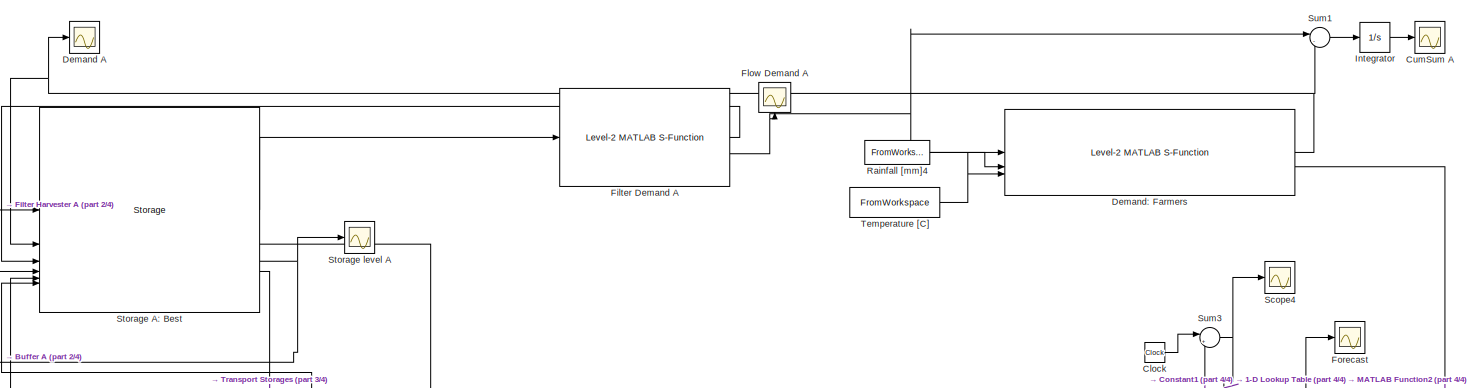
[diagram: root canvas - part 1/4, top center region]
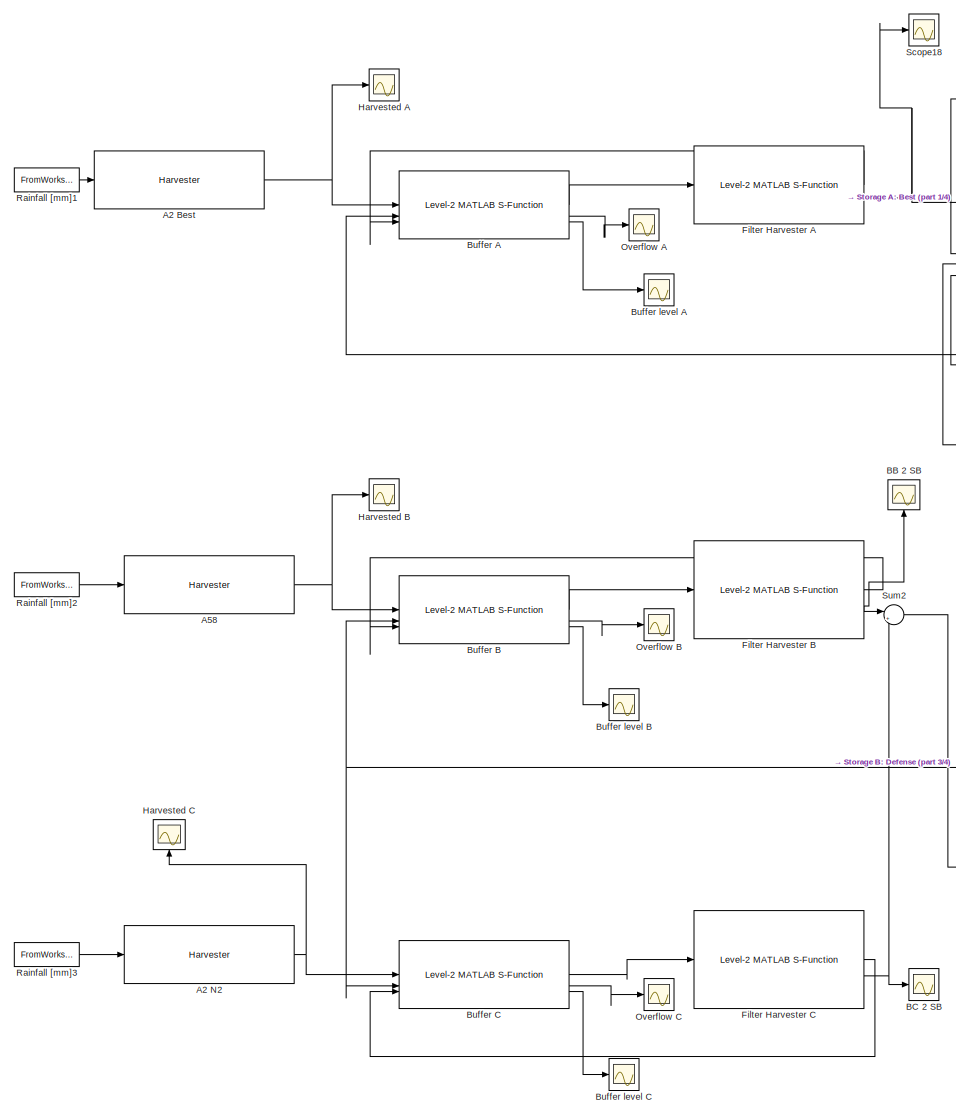
[diagram: root canvas - part 2/4, left side, full height]
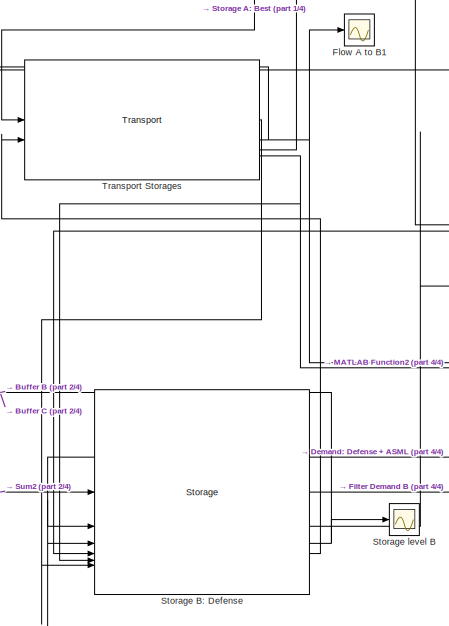
[diagram: root canvas - part 3/4, central region]
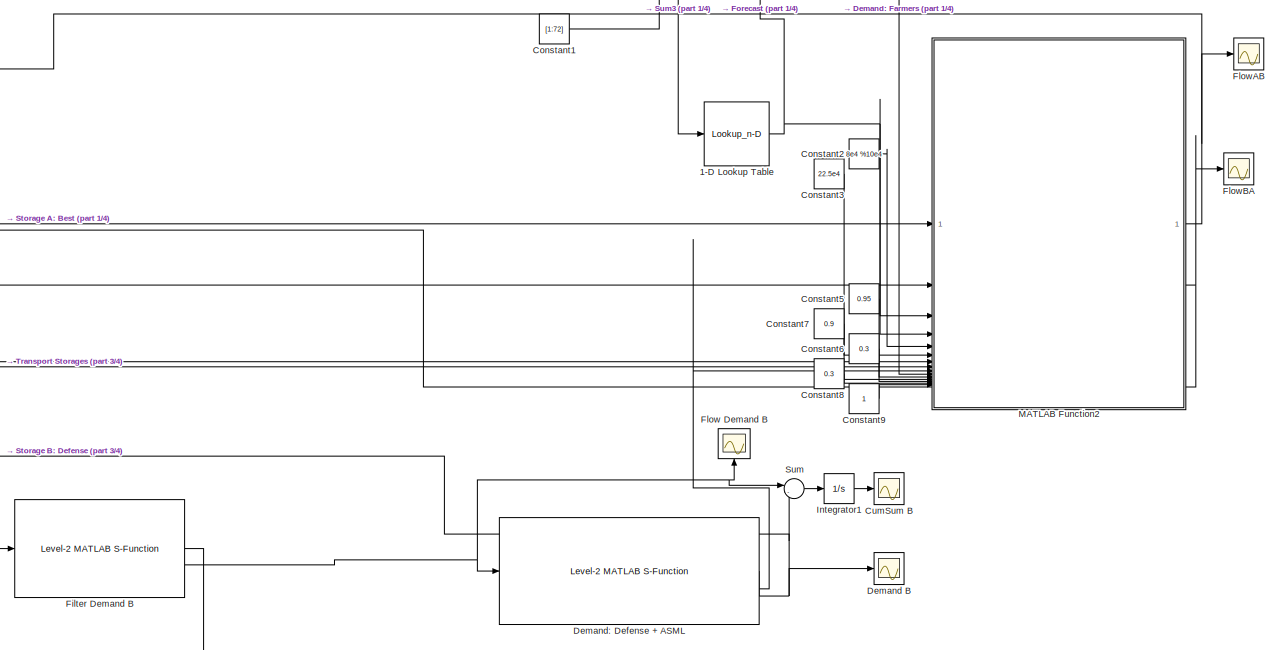
[diagram: root canvas - part 4/4, middle right region]
MODEL slx_6c951e8896bb
KIND model
CONFIG AbsTol = auto
CONFIG EnableMultiTasking = off
CONFIG FixedStep = 0.2
CONFIG MaxStep = auto
CONFIG MinStep = auto
CONFIG RelTol = 1e-3
CONFIG SampleTimeConstraint = Unconstrained
CONFIG SolverName = ode1
CONFIG StartTime = 0.0
CONFIG StopTime = 365*24
BLOCK [Lookup_n-D] 1-D Lookup Table
  BreakpointsForDimension1 = [0:8783]
  InputPortMap = u0
  InternalRulePriority = Speed
  NumberOfTableDimensions = 1
  RndMeth = Simplest
  Table = rain_data(:,2)
BLOCK [Reference] A2 Best  REF=Harvester_lib/Harvester
  SourceBlock = Harvester_lib/Harvester
BLOCK [Reference] A2 N2  REF=Harvester_lib/Harvester
  SourceBlock = Harvester_lib/Harvester
BLOCK [Reference] A58  REF=Harvester_lib/Harvester
  SourceBlock = Harvester_lib/Harvester
BLOCK [Scope] BB 2 SB
  Floating = off
  NameLocation = right
  NumInputPorts = 1
  ScopeSpecificationString = Simulink.scopes.TimeScopeBlockCfg('CurrentConfiguration', extmgr.ConfigurationSet(extmgr.Configuration('Core','General UI',true),extmgr.Configuration('Core','Source UI',true),extmgr.Configuration('Sources','WiredSimulink',true,'DataLoggingVariableName','ScopeData1'),extmgr.Configuration('Visuals','Time Domain',true,'SerializedDisplays',{struct('MinYLimReal','-7.82689','MaxYLimReal','70.44205','YLa...<+1511ch>
BLOCK [Scope] BC 2 SB
  Floating = off
  NumInputPorts = 1
  ScopeSpecificationString = Simulink.scopes.TimeScopeBlockCfg('CurrentConfiguration', extmgr.ConfigurationSet(extmgr.Configuration('Core','General UI',true),extmgr.Configuration('Core','Source UI',true),extmgr.Configuration('Sources','WiredSimulink',true,'DataLoggingVariableName','ScopeData2'),extmgr.Configuration('Visuals','Time Domain',true,'SerializedDisplays',{struct('MinYLimReal','-9.64414','MaxYLimReal','86.79727','YLa...<+1511ch>
BLOCK [Reference] Buffer A  REF=buffer_lib/Level-2 MATLAB
S-Function
  SourceBlock = buffer_lib/Level-2 MATLAB\nS-Function
BLOCK [Reference] Buffer B  REF=buffer_lib/Level-2 MATLAB
S-Function
  SourceBlock = buffer_lib/Level-2 MATLAB\nS-Function
BLOCK [Reference] Buffer C  REF=buffer_lib/Level-2 MATLAB
S-Function
  SourceBlock = buffer_lib/Level-2 MATLAB\nS-Function
BLOCK [Scope] Buffer level A
  Floating = off
  NumInputPorts = 1
  ScopeSpecificationString = Simulink.scopes.TimeScopeBlockCfg('CurrentConfiguration', extmgr.ConfigurationSet(extmgr.Configuration('Core','General UI',true),extmgr.Configuration('Core','Source UI',true),extmgr.Configuration('Sources','WiredSimulink',true,'DataLoggingVariableName','ScopeData2'),extmgr.Configuration('Visuals','Time Domain',true,'SerializedDisplays',{struct('MinYLimReal','-0.08002','MaxYLimReal','0.72022','YLab...<+1458ch>
BLOCK [Scope] Buffer level B
  Floating = off
  NumInputPorts = 1
  ScopeSpecificationString = Simulink.scopes.TimeScopeBlockCfg('CurrentConfiguration', extmgr.ConfigurationSet(extmgr.Configuration('Core','General UI',true),extmgr.Configuration('Core','Source UI',true),extmgr.Configuration('Sources','WiredSimulink',true,'DataLoggingVariableName','ScopeData8'),extmgr.Configuration('Visuals','Time Domain',true,'SerializedDisplays',{struct('MinYLimReal','-0.08066','MaxYLimReal','0.72594','YLab...<+1491ch>
BLOCK [Scope] Buffer level C
  Floating = off
  NumInputPorts = 1
  ScopeSpecificationString = Simulink.scopes.TimeScopeBlockCfg('CurrentConfiguration', extmgr.ConfigurationSet(extmgr.Configuration('Core','General UI',true),extmgr.Configuration('Core','Source UI',true),extmgr.Configuration('Sources','WiredSimulink',true,'DataLoggingVariableName','ScopeData2'),extmgr.Configuration('Visuals','Time Domain',true,'SerializedDisplays',{struct('MinYLimReal','-0.10847','MaxYLimReal','0.97623','YLab...<+1491ch>
BLOCK [Clock] Clock
BLOCK [Constant] Constant1
  Value = [1:72]
BLOCK [Constant] Constant2
  Value = 8e4 %10e4
BLOCK [Constant] Constant3
  Value = 22.5e4
BLOCK [Constant] Constant5
  Value = 0.95
BLOCK [Constant] Constant6
  Value = 0.3
BLOCK [Constant] Constant7
  Value = 0.9
BLOCK [Constant] Constant8
  Value = 0.3
BLOCK [Constant] Constant9
BLOCK [Scope] CumSum A
  Floating = off
  NumInputPorts = 1
  ScopeSpecificationString = Simulink.scopes.TimeScopeBlockCfg('CurrentConfiguration', extmgr.ConfigurationSet(extmgr.Configuration('Core','General UI',true),extmgr.Configuration('Core','Source UI',true),extmgr.Configuration('Sources','WiredSimulink',true,'DataLoggingVariableName','ScopeData1'),extmgr.Configuration('Visuals','Time Domain',true,'SerializedDisplays',{struct('MinYLimReal','-13.23384','MaxYLimReal','119.10458','Y...<+1506ch>
BLOCK [Scope] CumSum B
  Floating = off
  NumInputPorts = 1
  ScopeSpecificationString = Simulink.scopes.TimeScopeBlockCfg('CurrentConfiguration', extmgr.ConfigurationSet(extmgr.Configuration('Core','General UI',true),extmgr.Configuration('Core','Source UI',true),extmgr.Configuration('Sources','WiredSimulink',true,'DataLoggingVariableName','ScopeData2'),extmgr.Configuration('Visuals','Time Domain',true,'SerializedDisplays',{struct('MinYLimReal','-2389.93157','MaxYLimReal','21509.38415...<+1564ch>
BLOCK [Scope] Demand A
  Floating = off
  NumInputPorts = 1
  ScopeSpecificationString = Simulink.scopes.TimeScopeBlockCfg('CurrentConfiguration', extmgr.ConfigurationSet(extmgr.Configuration('Core','General UI',true),extmgr.Configuration('Core','Source UI',true),extmgr.Configuration('Sources','WiredSimulink',true,'DataLoggingVariableName','ScopeData1'),extmgr.Configuration('Visuals','Time Domain',true,'SerializedDisplays',{struct('MinYLimReal','-33.0846','MaxYLimReal','297.76144','YL...<+1510ch>
BLOCK [Scope] Demand B
  Floating = off
  NumInputPorts = 1
  ScopeSpecificationString = Simulink.scopes.TimeScopeBlockCfg('CurrentConfiguration', extmgr.ConfigurationSet(extmgr.Configuration('Core','General UI',true),extmgr.Configuration('Core','Source UI',true),extmgr.Configuration('Sources','WiredSimulink',true,'DataLoggingVariableName','ScopeData2'),extmgr.Configuration('Visuals','Time Domain',true,'SerializedDisplays',{struct('MinYLimReal','-34.63161','MaxYLimReal','311.68446','Y...<+1551ch>
BLOCK [Reference] Demand: Defense + ASML  REF=Demand_lib/Level-2 MATLAB
S-Function
  SourceBlock = Demand_lib/Level-2 MATLAB\nS-Function
BLOCK [Reference] Demand: Farmers  REF=Demand_lib/Level-2 MATLAB
S-Function
  SourceBlock = Demand_lib/Level-2 MATLAB\nS-Function
BLOCK [Reference] Filter Demand A  REF=filter_lib/Level-2 MATLAB
S-Function
  SourceBlock = filter_lib/Level-2 MATLAB\nS-Function
BLOCK [Reference] Filter Demand B  REF=filter_lib/Level-2 MATLAB
S-Function
  SourceBlock = filter_lib/Level-2 MATLAB\nS-Function
BLOCK [Reference] Filter Harvester A  REF=filter_lib/Level-2 MATLAB
S-Function
  SourceBlock = filter_lib/Level-2 MATLAB\nS-Function
BLOCK [Reference] Filter Harvester B  REF=filter_lib/Level-2 MATLAB
S-Function
  SourceBlock = filter_lib/Level-2 MATLAB\nS-Function
BLOCK [Reference] Filter Harvester C  REF=filter_lib/Level-2 MATLAB
S-Function
  SourceBlock = filter_lib/Level-2 MATLAB\nS-Function
BLOCK [Scope] Flow A to B1
  Floating = off
  NumInputPorts = 1
  ScopeSpecificationString = Simulink.scopes.TimeScopeBlockCfg('CurrentConfiguration', extmgr.ConfigurationSet(extmgr.Configuration('Core','General UI',true),extmgr.Configuration('Core','Source UI',true),extmgr.Configuration('Sources','WiredSimulink',true,'DataLoggingVariableName','ScopeData7'),extmgr.Configuration('Visuals','Time Domain',true,'SerializedDisplays',{struct('MinYLimReal','-25.00000','MaxYLimReal','225.00000','Y...<+1667ch>
BLOCK [Scope] Flow Demand A
  Floating = off
  NameLocation = right
  NumInputPorts = 1
  ScopeSpecificationString = Simulink.scopes.TimeScopeBlockCfg('CurrentConfiguration', extmgr.ConfigurationSet(extmgr.Configuration('Core','General UI',true),extmgr.Configuration('Core','Source UI',true),extmgr.Configuration('Sources','WiredSimulink',true,'DataLoggingVariableName','ScopeData4'),extmgr.Configuration('Visuals','Time Domain',true,'SerializedDisplays',{struct('MinYLimReal','-33.0846','MaxYLimReal','297.76144','YL...<+1512ch>
BLOCK [Scope] Flow Demand B
  Floating = off
  NameLocation = right
  NumInputPorts = 1
  ScopeSpecificationString = Simulink.scopes.TimeScopeBlockCfg('CurrentConfiguration', extmgr.ConfigurationSet(extmgr.Configuration('Core','General UI',true),extmgr.Configuration('Core','Source UI',true),extmgr.Configuration('Sources','WiredSimulink',true,'DataLoggingVariableName','ScopeData1'),extmgr.Configuration('Visuals','Time Domain',true,'SerializedDisplays',{struct('MinYLimReal','-49.75903','MaxYLimReal','447.83128','Y...<+1554ch>
BLOCK [Scope] FlowAB
  Floating = off
  NumInputPorts = 1
  ScopeSpecificationString = Simulink.scopes.TimeScopeBlockCfg('CurrentConfiguration', extmgr.ConfigurationSet(extmgr.Configuration('Core','General UI',true),extmgr.Configuration('Core','Source UI',true),extmgr.Configuration('Sources','WiredSimulink',true,'DataLoggingVariableName','ScopeData3'),extmgr.Configuration('Visuals','Time Domain',true,'SerializedDisplays',{struct('MinYLimReal','-17.53099','MaxYLimReal','157.77891','Y...<+1592ch>
BLOCK [Scope] FlowBA
  Floating = off
  NumInputPorts = 1
  ScopeSpecificationString = Simulink.scopes.TimeScopeBlockCfg('CurrentConfiguration', extmgr.ConfigurationSet(extmgr.Configuration('Core','General UI',true),extmgr.Configuration('Core','Source UI',true),extmgr.Configuration('Sources','WiredSimulink',true,'DataLoggingVariableName','ScopeData4'),extmgr.Configuration('Visuals','Time Domain',true,'SerializedDisplays',{struct('MinYLimReal','-30.01642','MaxYLimReal','270.1478','YL...<+1560ch>
BLOCK [Scope] Forecast
  Floating = off
  NumInputPorts = 1
  ScopeSpecificationString = Simulink.scopes.TimeScopeBlockCfg('CurrentConfiguration', extmgr.ConfigurationSet(extmgr.Configuration('Core','General UI',true),extmgr.Configuration('Core','Source UI',true),extmgr.Configuration('Sources','WiredSimulink',true,'DataLoggingVariableName','ScopeData1'),extmgr.Configuration('Visuals','Time Domain',true,'PlotType','Line','SerializedDisplays',{struct('MinYLimReal','-0.525','MaxYLimReal'...<+4129ch>
BLOCK [Scope] Harvested A
  Floating = off
  NumInputPorts = 1
  ScopeSpecificationString = Simulink.scopes.TimeScopeBlockCfg('CurrentConfiguration', extmgr.ConfigurationSet(extmgr.Configuration('Core','General UI',true),extmgr.Configuration('Core','Source UI',true),extmgr.Configuration('Sources','WiredSimulink',true,'DataLoggingVariableName','ScopeData3'),extmgr.Configuration('Visuals','Time Domain',true,'SerializedDisplays',{struct('MinYLimReal','-61.8','MaxYLimReal','1082.2','YLabelRe...<+1478ch>
BLOCK [Scope] Harvested B
  Floating = off
  NumInputPorts = 1
  ScopeSpecificationString = Simulink.scopes.TimeScopeBlockCfg('CurrentConfiguration', extmgr.ConfigurationSet(extmgr.Configuration('Core','General UI',true),extmgr.Configuration('Core','Source UI',true),extmgr.Configuration('Sources','WiredSimulink',true,'DataLoggingVariableName','ScopeData9'),extmgr.Configuration('Visuals','Time Domain',true,'SerializedDisplays',{struct('MinYLimReal','-2.86875','MaxYLimReal','25.81875','YLa...<+1486ch>
BLOCK [Scope] Harvested C
  Floating = off
  NameLocation = right
  NumInputPorts = 1
  ScopeSpecificationString = Simulink.scopes.TimeScopeBlockCfg('CurrentConfiguration', extmgr.ConfigurationSet(extmgr.Configuration('Core','General UI',true),extmgr.Configuration('Core','Source UI',true),extmgr.Configuration('Sources','WiredSimulink',true,'DataLoggingVariableName','ScopeData3'),extmgr.Configuration('Visuals','Time Domain',true,'SerializedDisplays',{struct('MinYLimReal','-2.86875','MaxYLimReal','25.81875','YLa...<+1486ch>
BLOCK [Integrator] Integrator
BLOCK [Integrator] Integrator1
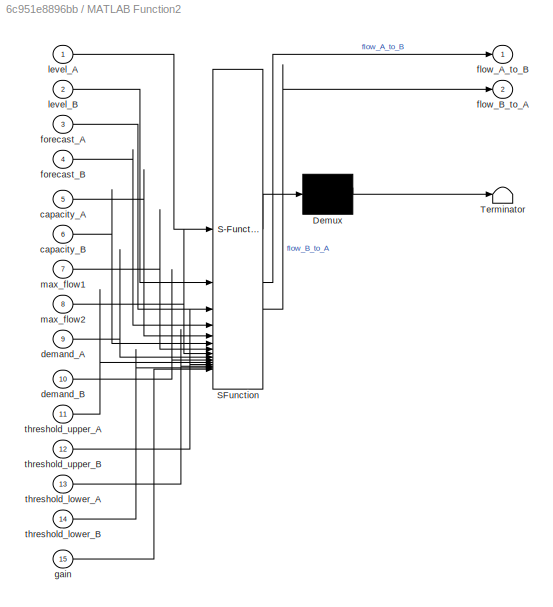
BLOCK [SubSystem] MATLAB Function2
  ErrorFcn = Stateflow.Translate.translate
  PermitHierarchicalResolution = ExplicitOnly
  SFBlockType = MATLAB Function
  TreatAsAtomicUnit = on
BLOCK [Demux] MATLAB Function2/ Demux 
  Outputs = 1
BLOCK [S-Function] MATLAB Function2/ SFunction 
  EnableBusSupport = on
  FunctionName = sf_sfun
  PortCounts = [15 3]
  SFcnIsStateOwnerBlock = off
  SFunctionDeploymentMode = off
  Tag = Stateflow S-Function 2
BLOCK [Terminator] MATLAB Function2/ Terminator 
BLOCK [Inport] MATLAB Function2/capacity_A
  Port = 5
BLOCK [Inport] MATLAB Function2/capacity_B
  Port = 6
BLOCK [Inport] MATLAB Function2/demand_A
  Port = 9
BLOCK [Inport] MATLAB Function2/demand_B
  Port = 10
BLOCK [Outport] MATLAB Function2/flow_A_to_B
BLOCK [Outport] MATLAB Function2/flow_B_to_A
  Port = 2
BLOCK [Inport] MATLAB Function2/forecast_A
  Port = 3
BLOCK [Inport] MATLAB Function2/forecast_B
  Port = 4
BLOCK [Inport] MATLAB Function2/gain
  Port = 15
BLOCK [Inport] MATLAB Function2/level_A
BLOCK [Inport] MATLAB Function2/level_B
  Port = 2
BLOCK [Inport] MATLAB Function2/max_flow1
  Port = 7
BLOCK [Inport] MATLAB Function2/max_flow2
  Port = 8
BLOCK [Inport] MATLAB Function2/threshold_lower_A
  Port = 13
BLOCK [Inport] MATLAB Function2/threshold_lower_B
  Port = 14
BLOCK [Inport] MATLAB Function2/threshold_upper_A
  Port = 11
BLOCK [Inport] MATLAB Function2/threshold_upper_B
  Port = 12
BLOCK [Scope] Overflow A
  Floating = off
  NumInputPorts = 1
  ScopeSpecificationString = Simulink.scopes.TimeScopeBlockCfg('CurrentConfiguration', extmgr.ConfigurationSet(extmgr.Configuration('Core','General UI',true),extmgr.Configuration('Core','Source UI',true),extmgr.Configuration('Sources','WiredSimulink',true,'DataLoggingVariableName','ScopeData7'),extmgr.Configuration('Visuals','Time Domain',true,'SerializedDisplays',{struct('MinYLimReal','-36.64041','MaxYLimReal','329.7637','YL...<+1501ch>
BLOCK [Scope] Overflow B
  Floating = off
  NumInputPorts = 1
  ScopeSpecificationString = Simulink.scopes.TimeScopeBlockCfg('CurrentConfiguration', extmgr.ConfigurationSet(extmgr.Configuration('Core','General UI',true),extmgr.Configuration('Core','Source UI',true),extmgr.Configuration('Sources','WiredSimulink',true,'DataLoggingVariableName','ScopeData10'),extmgr.Configuration('Visuals','Time Domain',true,'SerializedDisplays',{struct('MinYLimReal','-1.00000','MaxYLimReal','1.00000','YLa...<+1494ch>
BLOCK [Scope] Overflow C
  Floating = off
  NumInputPorts = 1
  ScopeSpecificationString = Simulink.scopes.TimeScopeBlockCfg('CurrentConfiguration', extmgr.ConfigurationSet(extmgr.Configuration('Core','General UI',true),extmgr.Configuration('Core','Source UI',true),extmgr.Configuration('Sources','WiredSimulink',true,'DataLoggingVariableName','ScopeData1'),extmgr.Configuration('Visuals','Time Domain',true,'SerializedDisplays',{struct('MinYLimReal','-1.00000','MaxYLimReal','1.00000','YLab...<+1487ch>
BLOCK [FromWorkspace] Rainfall [mm]1
  OutDataTypeStr = double
  SampleTime = 1
  VariableName = rain_data
BLOCK [FromWorkspace] Rainfall [mm]2
  OutDataTypeStr = double
  SampleTime = 1
  VariableName = rain_data
BLOCK [FromWorkspace] Rainfall [mm]3
  OutDataTypeStr = double
  SampleTime = 1
  VariableName = rain_data
BLOCK [FromWorkspace] Rainfall [mm]4
  OutDataTypeStr = double
  SampleTime = 1
  VariableName = rain_data
BLOCK [Scope] Scope18
  Floating = off
  NumInputPorts = 1
  ScopeSpecificationString = Simulink.scopes.TimeScopeBlockCfg('CurrentConfiguration', extmgr.ConfigurationSet(extmgr.Configuration('Core','General UI',true),extmgr.Configuration('Core','Source UI',true),extmgr.Configuration('Sources','WiredSimulink',true,'DataLoggingVariableName','ScopeData1'),extmgr.Configuration('Visuals','Time Domain',true,'SerializedDisplays',{struct('MinYLimReal','-18.58555','MaxYLimReal','167.26992','Y...<+1509ch>
BLOCK [Scope] Scope4
  Floating = off
  NumInputPorts = 1
  ScopeSpecificationString = Simulink.scopes.TimeScopeBlockCfg('CurrentConfiguration', extmgr.ConfigurationSet(extmgr.Configuration('Core','General UI',true),extmgr.Configuration('Core','Source UI',true),extmgr.Configuration('Sources','WiredSimulink',true,'DataLoggingVariableName','ScopeData5'),extmgr.Configuration('Visuals','Time Domain',true,'PlotType','Line','SerializedDisplays',{struct('MinYLimReal','-2.00000','MaxYLimRea...<+2601ch>
BLOCK [Reference] Storage A: Best  REF=storage_lib/Storage
  SourceBlock = storage_lib/Storage
BLOCK [Reference] Storage B: Defense  REF=storage_lib/Storage
  SourceBlock = storage_lib/Storage
BLOCK [Scope] Storage level A
  Floating = off
  NumInputPorts = 1
  ScopeSpecificationString = Simulink.scopes.TimeScopeBlockCfg('CurrentConfiguration', extmgr.ConfigurationSet(extmgr.Configuration('Core','General UI',true),extmgr.Configuration('Core','Source UI',true),extmgr.Configuration('Sources','WiredSimulink',true,'DataLoggingVariableName','ScopeData6'),extmgr.Configuration('Visuals','Time Domain',true,'SerializedDisplays',{struct('MinYLimReal','-0.12391','MaxYLimReal','1.11517','YLab...<+1541ch>
BLOCK [Scope] Storage level B
  Floating = off
  NumInputPorts = 1
  ScopeSpecificationString = Simulink.scopes.TimeScopeBlockCfg('CurrentConfiguration', extmgr.ConfigurationSet(extmgr.Configuration('Core','General UI',true),extmgr.Configuration('Core','Source UI',true),extmgr.Configuration('Sources','WiredSimulink',true,'DataLoggingVariableName','ScopeData11'),extmgr.Configuration('Visuals','Time Domain',true,'SerializedDisplays',{struct('MinYLimReal','-0.12033','MaxYLimReal','1.08295','YLa...<+1549ch>
BLOCK [Sum] Sum
  Inputs = |-+
BLOCK [Sum] Sum1
  Inputs = |-+
BLOCK [Sum] Sum2
  Inputs = |++
BLOCK [Sum] Sum3
  Inputs = |++
BLOCK [FromWorkspace] Temperature [C]
  OutDataTypeStr = double
  SampleTime = 1
  VariableName = temperature_data
BLOCK [Reference] Transport Storages  REF=transport_lib/Transport
  SourceBlock = transport_lib/Transport
NET 1-D Lookup Table:1 -> Forecast:1, MATLAB Function2:3, MATLAB Function2:4
NET A2 Best:1 -> Buffer A:1, Harvested A:1
NET A2 N2:1 -> Buffer C:1, Harvested C:1
NET A58:1 -> Buffer B:1, Harvested B:1
LINE Buffer A:1 -> Filter Harvester A:1
LINE Buffer A:2 -> Overflow A:1
LINE Buffer A:3 -> Buffer level A:1
LINE Buffer B:1 -> Filter Harvester B:1
LINE Buffer B:2 -> Overflow B:1
LINE Buffer B:3 -> Buffer level B:1
LINE Buffer C:1 -> Filter Harvester C:1
LINE Buffer C:2 -> Overflow C:1
LINE Buffer C:3 -> Buffer level C:1
LINE Clock:1 -> Sum3:1
LINE Constant1:1 -> Sum3:2
LINE Constant2:1 -> MATLAB Function2:5
LINE Constant3:1 -> MATLAB Function2:6
LINE Constant5:1 -> MATLAB Function2:11
LINE Constant6:1 -> MATLAB Function2:13
LINE Constant7:1 -> MATLAB Function2:12
LINE Constant8:1 -> MATLAB Function2:14
LINE Constant9:1 -> MATLAB Function2:15
NET Demand: Defense + ASML:1 -> Demand B:1, Storage B: Defense:2, Sum:2
LINE Demand: Defense + ASML:2 -> MATLAB Function2:9
NET Demand: Farmers:1 -> Demand A:1, Storage A: Best:2, Sum1:2
LINE Demand: Farmers:2 -> MATLAB Function2:10
LINE Filter Demand A:1 -> Storage A: Best:3
NET Filter Demand A:2 -> Demand: Farmers:1, Flow Demand A:1, Sum1:1
LINE Filter Demand B:1 -> Storage B: Defense:3
NET Filter Demand B:2 -> Demand: Defense + ASML:1, Flow Demand B:1, Sum:1
LINE Filter Harvester A:1 -> Buffer A:3
NET Filter Harvester A:2 -> Scope18:1, Storage A: Best:1
LINE Filter Harvester B:1 -> Buffer B:3
NET Filter Harvester B:2 -> BB 2 SB:1, Sum2:1
LINE Filter Harvester C:1 -> Buffer C:3
NET Filter Harvester C:2 -> BC 2 SB:1, Sum2:2
LINE Integrator1:1 -> CumSum B:1
LINE Integrator:1 -> CumSum A:1
NET MATLAB Function2:1 -> FlowAB:1, Storage A: Best:4
NET MATLAB Function2:2 -> FlowBA:1, Storage B: Defense:4
LINE Rainfall [mm]1:1 -> A2 Best:1
LINE Rainfall [mm]2:1 -> A58:1
LINE Rainfall [mm]3:1 -> A2 N2:1
LINE Rainfall [mm]4:1 -> Demand: Farmers:2
LINE Storage A: Best:1 -> Filter Demand A:1
LINE Storage A: Best:2 -> MATLAB Function2:1
NET Storage A: Best:3 -> Buffer A:2, Storage level A:1
LINE Storage A: Best:4 -> Transport Storages:1
LINE Storage B: Defense:1 -> Filter Demand B:1
LINE Storage B: Defense:2 -> MATLAB Function2:2
NET Storage B: Defense:3 -> Buffer B:2, Buffer C:2, Storage level B:1
LINE Storage B: Defense:4 -> Transport Storages:2
LINE Sum1:1 -> Integrator:1
LINE Sum2:1 -> Storage B: Defense:1
NET Sum3:1 -> 1-D Lookup Table:1, Scope4:1
LINE Sum:1 -> Integrator1:1
LINE Temperature [C]:1 -> Demand: Farmers:3
LINE Transport Storages:1 -> Storage B: Defense:6
NET Transport Storages:2 -> Flow A to B1:1, MATLAB Function2:7, Storage A: Best:5
LINE Transport Storages:3 -> Storage A: Best:6
NET Transport Storages:4 -> MATLAB Function2:8, Storage B: Defense:5
note: NET lines group one-source signal fan-out (src -> all destinations, sorted); 1:1 wires keep LINE
CHART MATLAB Function2 states=1 transitions=1
  STATE_LABEL 'eML_blk_kernel()'
  STATE_LABEL 'SCRIPT:\nfunction [flow_A_to_B, flow_B_to_A] = ...\n    predictive_controller(level_A, level_B, ...\n                          forecast_A, forecast_B, ...\n                          capacity_A, capacity_B, ...\n                          max_flow1, max_flow2, demand_A, demand_B, threshold_upper_A, threshold_upper_B, threshold_lower_A, threshold_lower_B, gain)\n\n    % threshold_upper_A = 0.8;\n    % thresh...<+3576ch>'
CHART  states=0 transitions=0
